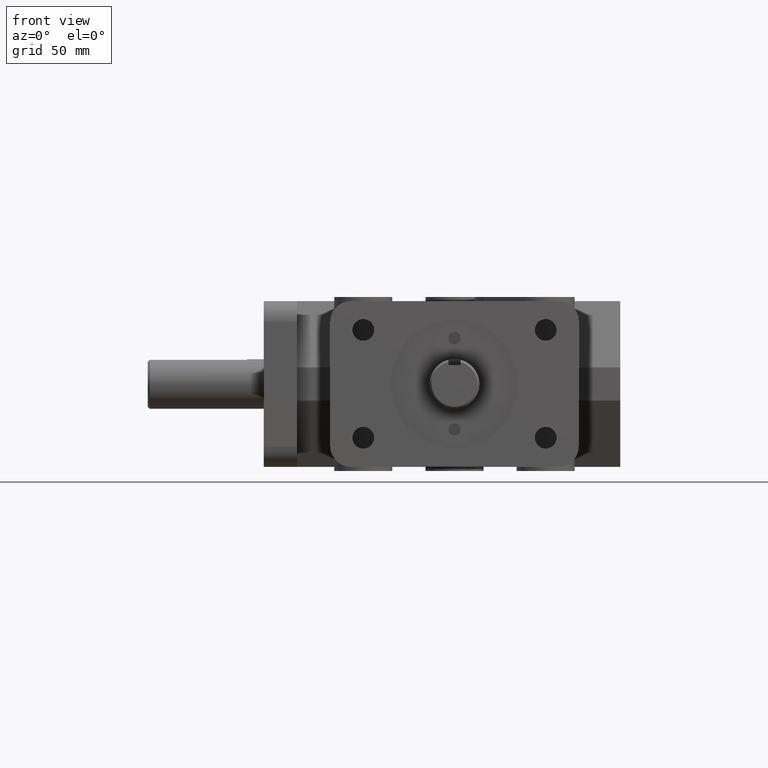
[diagram: clean part render]
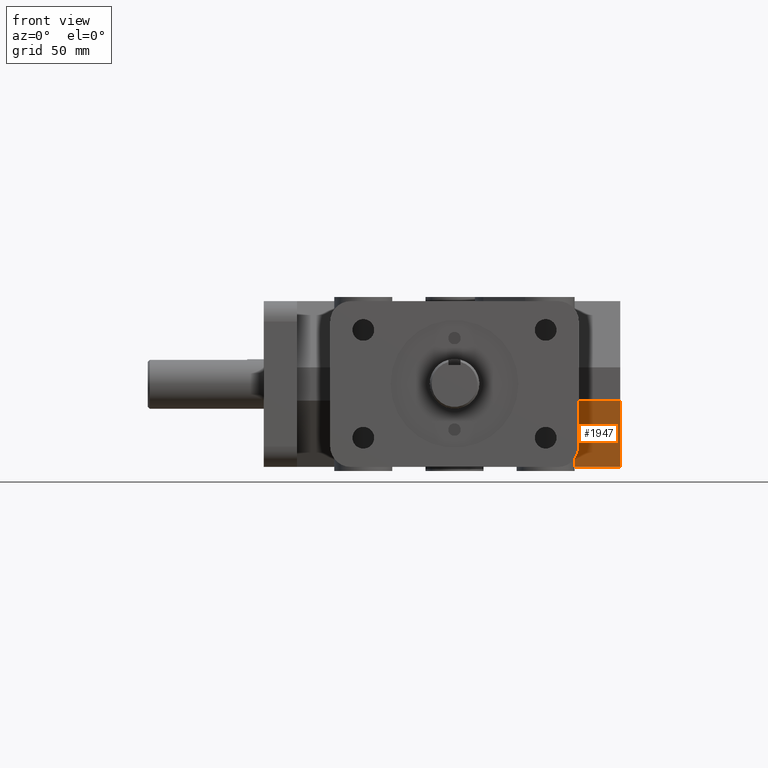
[diagram: same view with one face highlighted and labeled with its STEP entity id]
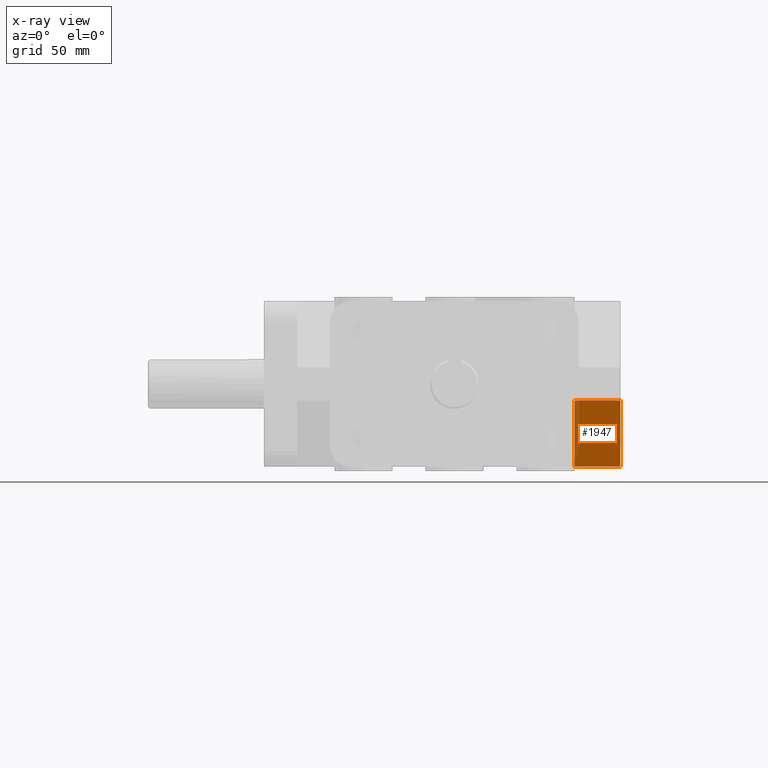
[diagram: x-ray of the same camera — body ghosted, the highlighted face saturated]
A machine part, front view. The second image highlights one B-rep face of the part: STEP entity #1947.
The next image is the same camera in x-ray: the body ghosted, the highlighted face saturated — about 8% of this face is hidden behind the body in this view.
In plain terms, the highlighted planar face has unit normal (0, -0.866, -0.5).
Its self-contained STEP definition (entity closure, byte-faithful):
#77=LINE('',#2967,#268);
#131=LINE('',#3137,#322);
#132=LINE('',#3139,#323);
#133=LINE('',#3140,#324);
#268=VECTOR('',#2345,1.);
#322=VECTOR('',#2519,1.);
#323=VECTOR('',#2520,1.);
#324=VECTOR('',#2521,1.);
#510=FACE_OUTER_BOUND('',#638,.T.);
#638=EDGE_LOOP('',(#1503,#1504,#1505,#1506));
#881=VERTEX_POINT('',#2964);
#882=VERTEX_POINT('',#2966);
#938=VERTEX_POINT('',#3136);
#939=VERTEX_POINT('',#3138);
#1074=EDGE_CURVE('',#882,#881,#77,.T.);
#1160=EDGE_CURVE('',#881,#938,#131,.T.);
#1161=EDGE_CURVE('',#938,#939,#132,.T.);
#1162=EDGE_CURVE('',#939,#882,#133,.F.);
#1503=ORIENTED_EDGE('',*,*,#1160,.T.);
#1504=ORIENTED_EDGE('',*,*,#1161,.T.);
#1505=ORIENTED_EDGE('',*,*,#1162,.T.);
#1506=ORIENTED_EDGE('',*,*,#1074,.T.);
#1861=PLANE('',#2123);
#1947=ADVANCED_FACE('',(#510),#1861,.T.);
#2123=AXIS2_PLACEMENT_3D('',#3135,#2517,#2518);
#2345=DIRECTION('',(1.,0.,0.));
#2517=DIRECTION('center_axis',(0.,-0.866025504730542,-0.499999825156179));
#2518=DIRECTION('ref_axis',(0.,-0.499999825156179,0.866025504730542));
#2519=DIRECTION('',(0.,-0.499999825156179,0.866025504730542));
#2520=DIRECTION('',(-1.,0.,0.));
#2521=DIRECTION('',(0.,-0.499999825156179,0.866025504730542));
#2964=CARTESIAN_POINT('',(2.5,3.70235,-1.25));
#2966=CARTESIAN_POINT('',(1.8125,3.70235,-1.25));
#2967=CARTESIAN_POINT('',(0.90625,3.70235,-1.25));
#3135=CARTESIAN_POINT('Origin',(0.90625,3.413675,-0.75));
#3136=CARTESIAN_POINT('',(2.5,3.125,-0.25));
#3137=CARTESIAN_POINT('',(2.5,7.60083268624271,-8.00237323329473));
#3138=CARTESIAN_POINT('',(1.8125,3.125,-0.25));
#3139=CARTESIAN_POINT('',(0.90625,3.125,-0.25));
#3140=CARTESIAN_POINT('',(1.8125,3.19958593580948,-0.379186690585397));